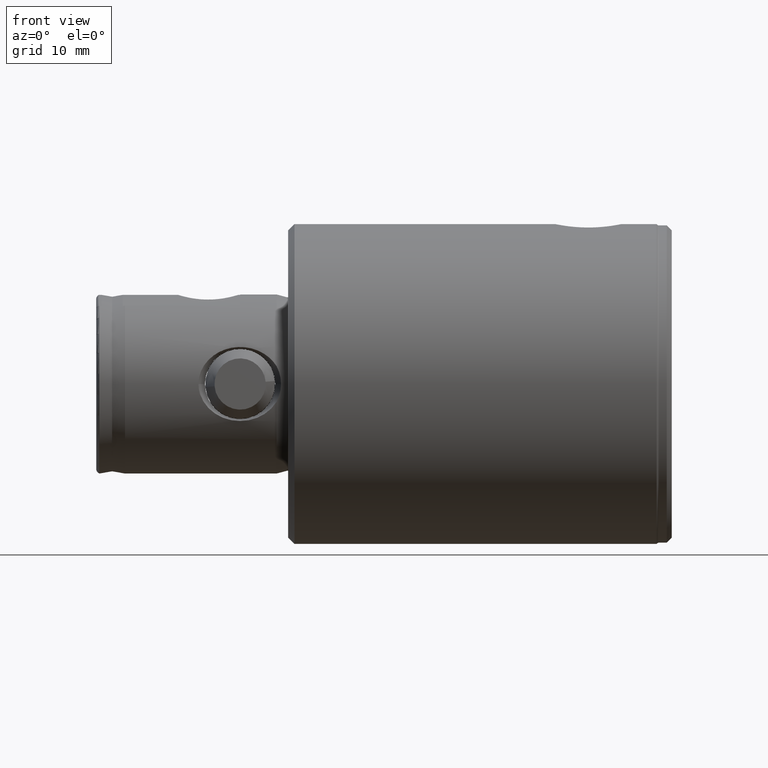
[diagram: clean part render]
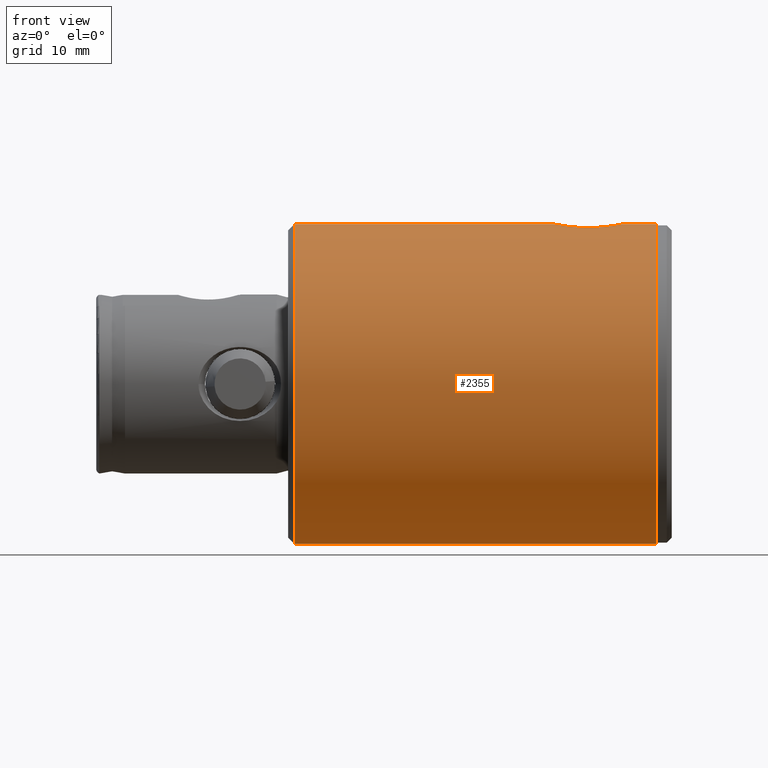
[diagram: same view with one face highlighted and labeled with its STEP entity id]
A machine part, front view. The second image highlights one B-rep face of the part: STEP entity #2355.
In plain terms, the highlighted cylindrical surface (partial cylindrical patch) has radius 25 mm, axis along (1, 0, -0).
Its self-contained STEP definition (entity closure, byte-faithful):
#27 = CARTESIAN_POINT ( 'NONE',  ( 24.86749223834642600, -2.585814114684974500, 17.51636117990560500 ) ) ;
#40 = CARTESIAN_POINT ( 'NONE',  ( 24.49985703829741000, -4.975893714729938500, 11.71154573437423500 ) ) ;
#55 = CARTESIAN_POINT ( 'NONE',  ( 25.00000000000000400, -0.3412562324752580500, 7.899999999999999500 ) ) ;
#61 = DIRECTION ( 'NONE',  ( 0.0000000000000000000, 0.0000000000000000000, -1.000000000000000000 ) ) ;
#228 = CARTESIAN_POINT ( 'NONE',  ( 0.0000000000000000000, 0.0000000000000000000, 60.00000000000000000 ) ) ;
#302 = CYLINDRICAL_SURFACE ( 'NONE', #4432, 25.00000000000000000 ) ;
#387 = CARTESIAN_POINT ( 'NONE',  ( 24.56824540919773600, -4.628008233646514900, 10.76604172580906200 ) ) ;
#430 = CARTESIAN_POINT ( 'NONE',  ( 24.49132699947186300, -5.017573793023014900, 11.87730519733742400 ) ) ;
#446 = CARTESIAN_POINT ( 'NONE',  ( 24.47081869352005200, -5.116992507600026700, 12.37625883927284000 ) ) ;
#708 = EDGE_CURVE ( 'NONE', #4208, #1551, #2931, .T. ) ;
#764 = LINE ( 'NONE', #1481, #4333 ) ;
#799 = CARTESIAN_POINT ( 'NONE',  ( 24.94666736215257400, -1.661705370577949900, 17.93618130134676000 ) ) ;
#812 = CARTESIAN_POINT ( 'NONE',  ( 25.00000000000000400, -0.3366141758356344700, 18.19999999999999900 ) ) ;
#834 = CARTESIAN_POINT ( 'NONE',  ( 24.96622801772688400, -1.340612106738111200, 18.03389832165195000 ) ) ;
#840 = CARTESIAN_POINT ( 'NONE',  ( 25.00000000000000000, 3.061617890640566700E-015, 18.19999999999999900 ) ) ;
#880 = LINE ( 'NONE', #4495, #3091 ) ;
#1115 = ORIENTED_EDGE ( 'NONE', *, *, #1214, .T. ) ;
#1120 = CARTESIAN_POINT ( 'NONE',  ( 24.97309278332147600, -1.171266871514128800, 8.032142053040138000 ) ) ;
#1138 = CARTESIAN_POINT ( 'NONE',  ( 24.69834092362676600, -3.879335882617564600, 9.646257828236040100 ) ) ;
#1156 = CARTESIAN_POINT ( 'NONE',  ( 24.49815943661875300, -4.984448044311589500, 14.38844727297497400 ) ) ;
#1194 = CARTESIAN_POINT ( 'NONE',  ( 24.99298783651287400, -0.6784845302457100900, 18.16626250729135400 ) ) ;
#1214 = EDGE_CURVE ( 'NONE', #3118, #3390, #2352, .T. ) ;
#1314 = EDGE_CURVE ( 'NONE', #1936, #1638, #2758, .T. ) ;
#1384 = FACE_OUTER_BOUND ( 'NONE', #2045, .T. ) ;
#1407 = EDGE_CURVE ( 'NONE', #1638, #3118, #764, .T. ) ;
#1433 = CARTESIAN_POINT ( 'NONE',  ( 25.00000000000000000, 3.061616997868383000E-015, 58.99999999999998600 ) ) ;
#1477 = CARTESIAN_POINT ( 'NONE',  ( 25.00000000000000000, -1.805636716290672400E-017, 7.900000000000000400 ) ) ;
#1481 = CARTESIAN_POINT ( 'NONE',  ( -25.00000000000000000, 0.0000000000000000000, 60.00000000000000000 ) ) ;
#1491 = CARTESIAN_POINT ( 'NONE',  ( 24.93418345692677500, -1.819596022598023400, 8.229207425961790900 ) ) ;
#1510 = CARTESIAN_POINT ( 'NONE',  ( 24.99302081562882400, -0.6766295177578863800, 7.933582275028976800 ) ) ;
#1528 = CARTESIAN_POINT ( 'NONE',  ( 24.76863267878178800, -3.401959705173354600, 16.93119244566198800 ) ) ;
#1546 = CARTESIAN_POINT ( 'NONE',  ( 24.59902767005139200, -4.460313100709028000, 15.63002865643088200 ) ) ;
#1551 = VERTEX_POINT ( 'NONE', #840 ) ;
#1638 = VERTEX_POINT ( 'NONE', #2313 ) ;
#1669 = DIRECTION ( 'NONE',  ( -1.000000000000000000, 0.0000000000000000000, 0.0000000000000000000 ) ) ;
#1790 = LINE ( 'NONE', #3071, #1838 ) ;
#1812 = DIRECTION ( 'NONE',  ( -0.0000000000000000000, -0.0000000000000000000, -1.000000000000000000 ) ) ;
#1838 = VECTOR ( 'NONE', #2662, 1000.000000000000000 ) ;
#1877 = CARTESIAN_POINT ( 'NONE',  ( 24.46382790054542200, -5.149866451764492800, 12.71105192608564300 ) ) ;
#1936 = VERTEX_POINT ( 'NONE', #1433 ) ;
#2028 = ORIENTED_EDGE ( 'NONE', *, *, #1314, .T. ) ;
#2045 = EDGE_LOOP ( 'NONE', ( #3866, #2028, #3133, #1115, #4143, #3377 ) ) ;
#2054 = CARTESIAN_POINT ( 'NONE',  ( 25.00000000000000000, 3.061616997868383000E-015, 2.361743804370863000 ) ) ;
#2160 = CARTESIAN_POINT ( 'NONE',  ( -25.00000000000000000, 0.0000000000000000000, 2.361743804370863000 ) ) ;
#2313 = CARTESIAN_POINT ( 'NONE',  ( -25.00000000000000000, 0.0000000000000000000, 58.99999999999998600 ) ) ;
#2352 = CIRCLE ( 'NONE', #3926, 25.00000000000000000 ) ;
#2355 = ADVANCED_FACE ( 'NONE', ( #1384 ), #302, .T. ) ;
#2376 = EDGE_CURVE ( 'NONE', #1936, #1551, #880, .T. ) ;
#2383 = DIRECTION ( 'NONE',  ( 0.0000000000000000000, 0.0000000000000000000, -1.000000000000000000 ) ) ;
#2550 = EDGE_CURVE ( 'NONE', #4208, #3390, #1790, .T. ) ;
#2606 = CARTESIAN_POINT ( 'NONE',  ( 24.51961581005332400, -4.877597122014433000, 11.38866788486551100 ) ) ;
#2621 = CARTESIAN_POINT ( 'NONE',  ( 24.80340305134824100, -3.141719765509066100, 8.955467391566038800 ) ) ;
#2662 = DIRECTION ( 'NONE',  ( 0.0000000000000000000, 0.0000000000000000000, -1.000000000000000000 ) ) ;
#2758 = CIRCLE ( 'NONE', #4314, 25.00000000000000000 ) ;
#2931 = B_SPLINE_CURVE_WITH_KNOTS ( 'NONE', 3,
 ( #1477, #55, #1510, #1120, #2980, #3682, #1491, #3999, #3321, #2621, #3664, #1138, #2961, #3651, #387, #3980, #2606, #40, #430, #446, #1877, #4374, #3634, #1156, #4335, #4357, #2998, #1546, #3286, #3965, #3352, #1528, #4018, #27, #4034, #799, #834, #1194, #812, #4319 ),
 .UNSPECIFIED., .F., .F.,
 ( 4, 2, 2, 2, 2, 2, 2, 2, 2, 2, 2, 2, 2, 2, 2, 2, 2, 2, 2, 4 ),
 ( 1.754034858885154500E-020, 0.001009033924825417300, 0.001513550887238125000, 0.002018067849650832500, 0.003027101774476246900, 0.004036135699301661400, 0.005045169624127076800, 0.006054203548952492200, 0.006558720511365203300, 0.007063237473777912700, 0.008072271398603328100, 0.009081305323428745200, 0.01009033924825416100, 0.01059485621066686700, 0.01109937317307957900, 0.01210840709790499600, 0.01311744102273041200, 0.01412647494755582500, 0.01513550887238124300, 0.01614454279720665600 ),
 .UNSPECIFIED. ) ;
#2961 = CARTESIAN_POINT ( 'NONE',  ( 24.66354829000341600, -4.092174025654120600, 9.904970926310696200 ) ) ;
#2980 = CARTESIAN_POINT ( 'NONE',  ( 24.96487205478766600, -1.334732001804988400, 8.073086873712057400 ) ) ;
#2992 = CARTESIAN_POINT ( 'NONE',  ( 0.0000000000000000000, 0.0000000000000000000, 2.361743804370863000 ) ) ;
#2998 = CARTESIAN_POINT ( 'NONE',  ( 24.56962176676938000, -4.619549924635842700, 15.33269562538637500 ) ) ;
#3071 = CARTESIAN_POINT ( 'NONE',  ( 25.00000000000000000, 3.061616997868383000E-015, 60.00000000000000000 ) ) ;
#3091 = VECTOR ( 'NONE', #2383, 1000.000000000000000 ) ;
#3118 = VERTEX_POINT ( 'NONE', #2160 ) ;
#3133 = ORIENTED_EDGE ( 'NONE', *, *, #1407, .T. ) ;
#3286 = CARTESIAN_POINT ( 'NONE',  ( 24.61459101172248500, -4.373881789317758600, 15.77391471374539700 ) ) ;
#3321 = CARTESIAN_POINT ( 'NONE',  ( 24.86784358310558600, -2.582549426209665500, 8.581662632734243300 ) ) ;
#3352 = CARTESIAN_POINT ( 'NONE',  ( 24.69818010058035200, -3.880514699281157200, 16.45273277007608900 ) ) ;
#3363 = DIRECTION ( 'NONE',  ( 1.000000000000000000, 0.0000000000000000000, 0.0000000000000000000 ) ) ;
#3377 = ORIENTED_EDGE ( 'NONE', *, *, #708, .T. ) ;
#3390 = VERTEX_POINT ( 'NONE', #2054 ) ;
#3634 = CARTESIAN_POINT ( 'NONE',  ( 24.47094155363833300, -5.116400841104064200, 13.72720443156065100 ) ) ;
#3651 = CARTESIAN_POINT ( 'NONE',  ( 24.59812436042808100, -4.468644140954081600, 10.46769179374226700 ) ) ;
#3664 = CARTESIAN_POINT ( 'NONE',  ( 24.76808990164205000, -3.405732504768701500, 9.172411346213918300 ) ) ;
#3682 = CARTESIAN_POINT ( 'NONE',  ( 24.94543635256344800, -1.658780096566830900, 8.171514335934425300 ) ) ;
#3865 = CARTESIAN_POINT ( 'NONE',  ( 0.0000000000000000000, 0.0000000000000000000, 58.99999999999998600 ) ) ;
#3866 = ORIENTED_EDGE ( 'NONE', *, *, #2376, .F. ) ;
#3895 = DIRECTION ( 'NONE',  ( 1.000000000000000000, 0.0000000000000000000, 0.0000000000000000000 ) ) ;
#3926 = AXIS2_PLACEMENT_3D ( 'NONE', #2992, #3991, #3363 ) ;
#3965 = CARTESIAN_POINT ( 'NONE',  ( 24.66314122625848200, -4.094532351662048900, 16.19157888965555600 ) ) ;
#3980 = CARTESIAN_POINT ( 'NONE',  ( 24.53087889431125000, -4.820815942032208300, 11.23056600688994400 ) ) ;
#3991 = DIRECTION ( 'NONE',  ( 0.0000000000000000000, 0.0000000000000000000, 1.000000000000000000 ) ) ;
#3995 = CARTESIAN_POINT ( 'NONE',  ( 25.00000000000000000, -1.805636716290672400E-017, 7.900000000000000400 ) ) ;
#3999 = CARTESIAN_POINT ( 'NONE',  ( 24.89712890570479700, -2.287074473920685900, 8.423373447081935700 ) ) ;
#4018 = CARTESIAN_POINT ( 'NONE',  ( 24.80324739742906500, -3.142852748992870800, 17.14356732242427100 ) ) ;
#4034 = CARTESIAN_POINT ( 'NONE',  ( 24.89738896968492900, -2.284184692337024800, 17.67801606949798200 ) ) ;
#4143 = ORIENTED_EDGE ( 'NONE', *, *, #2550, .F. ) ;
#4208 = VERTEX_POINT ( 'NONE', #3995 ) ;
#4314 = AXIS2_PLACEMENT_3D ( 'NONE', #3865, #1812, #3895 ) ;
#4319 = CARTESIAN_POINT ( 'NONE',  ( 25.00000000000000000, 3.061617890640566700E-015, 18.19999999999999900 ) ) ;
#4333 = VECTOR ( 'NONE', #61, 1000.000000000000000 ) ;
#4335 = CARTESIAN_POINT ( 'NONE',  ( 24.51807410225155700, -4.886863844193211300, 14.70993347914458700 ) ) ;
#4357 = CARTESIAN_POINT ( 'NONE',  ( 24.55572217660355600, -4.692638635592531100, 15.17843181296964200 ) ) ;
#4374 = CARTESIAN_POINT ( 'NONE',  ( 24.46377184202310700, -5.150132743915564900, 13.38487757146217500 ) ) ;
#4432 = AXIS2_PLACEMENT_3D ( 'NONE', #228, #4508, #1669 ) ;
#4495 = CARTESIAN_POINT ( 'NONE',  ( 25.00000000000000000, 3.061616997868383000E-015, 60.00000000000000000 ) ) ;
#4508 = DIRECTION ( 'NONE',  ( 0.0000000000000000000, 0.0000000000000000000, -1.000000000000000000 ) ) ;